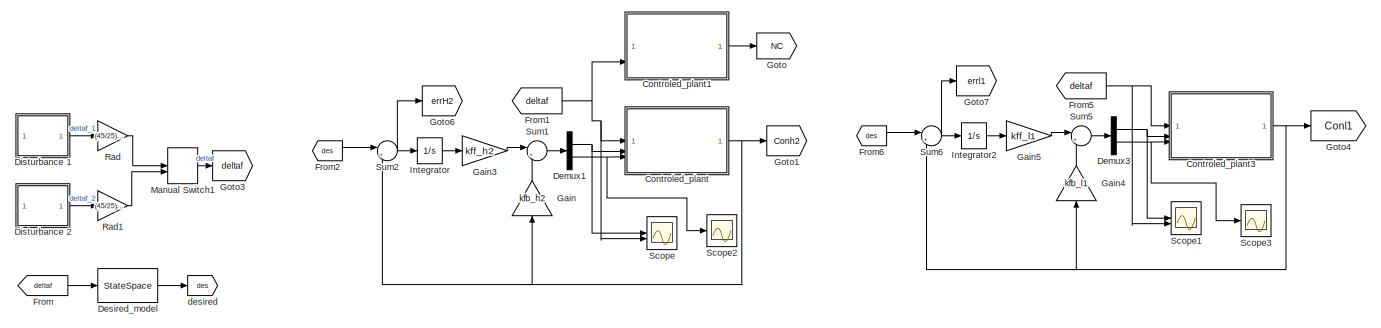
[diagram: root canvas - part 1/2, full width, top band]
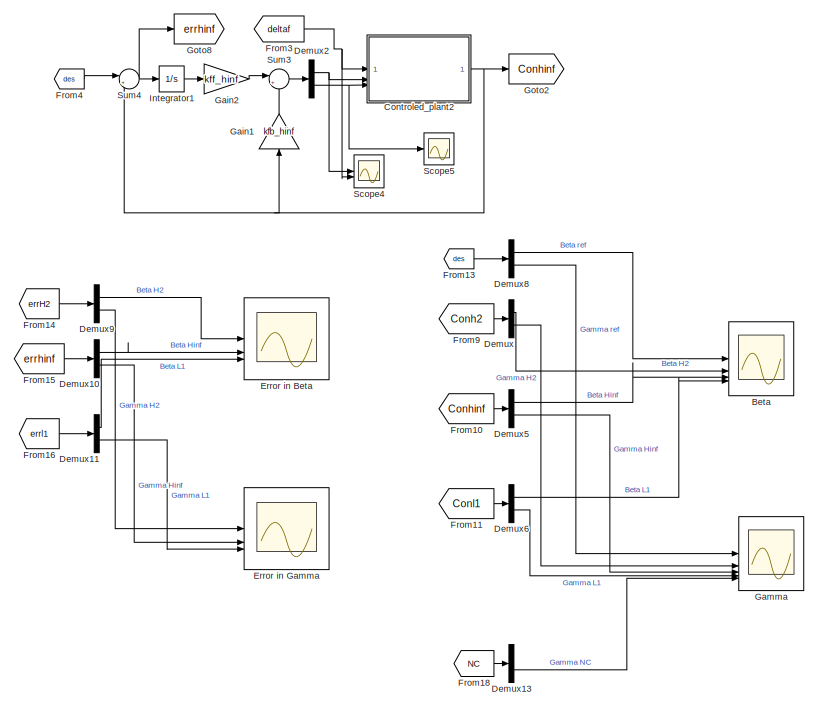
[diagram: root canvas - part 2/2, central region]
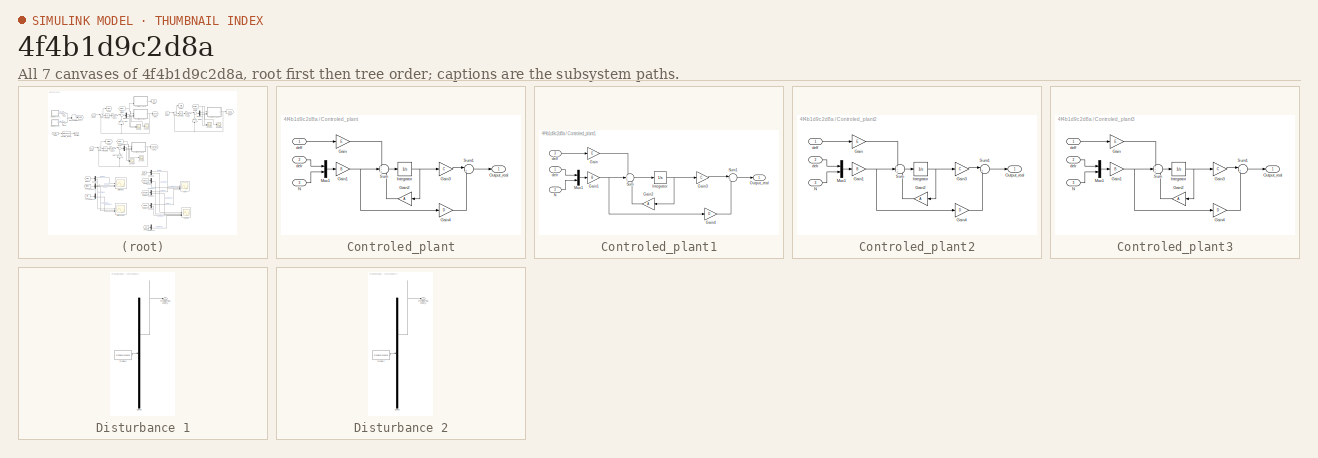
[diagram: thumbnail index - all 7 canvases of the model, root first then tree order]
MODEL slx_4f4b1d9c2d8a
KIND model
CONFIG AbsTol = auto
CONFIG EnableMultiTasking = off
CONFIG FixedStep = auto
CONFIG MaxStep = auto
CONFIG MinStep = auto
CONFIG RelTol = 1e-3
CONFIG SampleTimeConstraint = Unconstrained
CONFIG SolverName = VariableStepAuto
CONFIG StartTime = 0.0
CONFIG StopTime = 3
BLOCK [Scope] Beta
  Floating = off
  NumInputPorts = 5
  ScopeSpecificationString = Simulink.scopes.TimeScopeBlockCfg('CurrentConfiguration', extmgr.ConfigurationSet(extmgr.Configuration('Core','General UI',true,'FigureColor',[1 1 1]),extmgr.Configuration('Core','Source UI',true),extmgr.Configuration('Sources','WiredSimulink',true),extmgr.Configuration('Visuals','Time Domain',true,'SerializedDisplays',{struct('MinYLimReal','-0.00082','MaxYLimReal','0.00082','YLabelReal','','MinYL...<+2328ch>
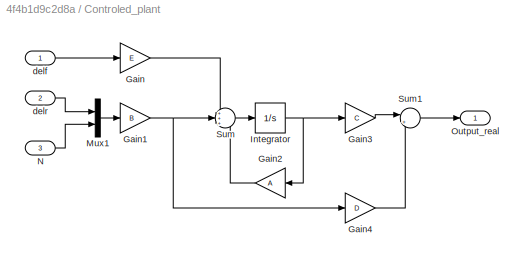
BLOCK [SubSystem] Controled_plant
BLOCK [Gain] Controled_plant/Gain
  Gain = E
  Multiplication = Matrix(K*u)
BLOCK [Gain] Controled_plant/Gain1
  Gain = B
  Multiplication = Matrix(K*u)
BLOCK [Gain] Controled_plant/Gain2
  Gain = A
  Multiplication = Matrix(K*u)
BLOCK [Gain] Controled_plant/Gain3
  Gain = C
  Multiplication = Matrix(K*u)
BLOCK [Gain] Controled_plant/Gain4
  Gain = D
  Multiplication = Matrix(K*u)
BLOCK [Integrator] Controled_plant/Integrator
  InitialCondition = x0
BLOCK [Mux] Controled_plant/Mux1
  DisplayOption = bar
  Inputs = 2
BLOCK [Inport] Controled_plant/N
  Port = 3
BLOCK [Outport] Controled_plant/Output_real
BLOCK [Sum] Controled_plant/Sum
  Inputs = +++
BLOCK [Sum] Controled_plant/Sum1
  Inputs = |++
BLOCK [Inport] Controled_plant/delf
BLOCK [Inport] Controled_plant/delr
  Port = 2
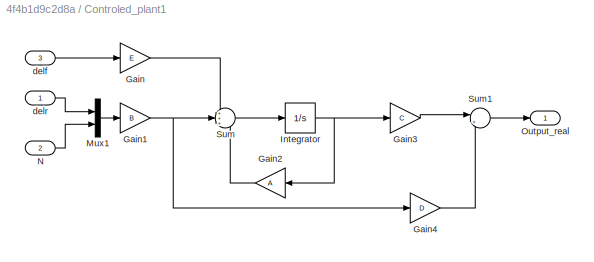
BLOCK [SubSystem] Controled_plant1
BLOCK [Gain] Controled_plant1/Gain
  Gain = E
  Multiplication = Matrix(K*u)
BLOCK [Gain] Controled_plant1/Gain1
  Gain = B
  Multiplication = Matrix(K*u)
BLOCK [Gain] Controled_plant1/Gain2
  Gain = A
  Multiplication = Matrix(K*u)
BLOCK [Gain] Controled_plant1/Gain3
  Gain = C
  Multiplication = Matrix(K*u)
BLOCK [Gain] Controled_plant1/Gain4
  Gain = D
  Multiplication = Matrix(K*u)
BLOCK [Integrator] Controled_plant1/Integrator
  InitialCondition = x0
BLOCK [Mux] Controled_plant1/Mux1
  DisplayOption = bar
  Inputs = 2
BLOCK [Inport] Controled_plant1/N
  Port = 2
BLOCK [Outport] Controled_plant1/Output_real
BLOCK [Sum] Controled_plant1/Sum
  Inputs = +++
BLOCK [Sum] Controled_plant1/Sum1
  Inputs = |++
BLOCK [Inport] Controled_plant1/delf
  Port = 3
BLOCK [Inport] Controled_plant1/delr
BLOCK [SubSystem] Controled_plant2
BLOCK [Gain] Controled_plant2/Gain
  Gain = E
  Multiplication = Matrix(K*u)
BLOCK [Gain] Controled_plant2/Gain1
  Gain = B
  Multiplication = Matrix(K*u)
BLOCK [Gain] Controled_plant2/Gain2
  Gain = A
  Multiplication = Matrix(K*u)
BLOCK [Gain] Controled_plant2/Gain3
  Gain = C
  Multiplication = Matrix(K*u)
BLOCK [Gain] Controled_plant2/Gain4
  Gain = D
  Multiplication = Matrix(K*u)
BLOCK [Integrator] Controled_plant2/Integrator
  InitialCondition = x0
BLOCK [Mux] Controled_plant2/Mux1
  DisplayOption = bar
  Inputs = 2
BLOCK [Inport] Controled_plant2/N
  Port = 3
BLOCK [Outport] Controled_plant2/Output_real
BLOCK [Sum] Controled_plant2/Sum
  Inputs = +++
BLOCK [Sum] Controled_plant2/Sum1
  Inputs = |++
BLOCK [Inport] Controled_plant2/delf
BLOCK [Inport] Controled_plant2/delr
  Port = 2
BLOCK [SubSystem] Controled_plant3
BLOCK [Gain] Controled_plant3/Gain
  Gain = E
  Multiplication = Matrix(K*u)
BLOCK [Gain] Controled_plant3/Gain1
  Gain = B
  Multiplication = Matrix(K*u)
BLOCK [Gain] Controled_plant3/Gain2
  Gain = A
  Multiplication = Matrix(K*u)
BLOCK [Gain] Controled_plant3/Gain3
  Gain = C
  Multiplication = Matrix(K*u)
BLOCK [Gain] Controled_plant3/Gain4
  Gain = D
  Multiplication = Matrix(K*u)
BLOCK [Integrator] Controled_plant3/Integrator
  InitialCondition = x0
BLOCK [Mux] Controled_plant3/Mux1
  DisplayOption = bar
  Inputs = 2
BLOCK [Inport] Controled_plant3/N
  Port = 3
BLOCK [Outport] Controled_plant3/Output_real
BLOCK [Sum] Controled_plant3/Sum
  Inputs = +++
BLOCK [Sum] Controled_plant3/Sum1
  Inputs = |++
BLOCK [Inport] Controled_plant3/delf
BLOCK [Inport] Controled_plant3/delr
  Port = 2
BLOCK [Demux] Demux
  Outputs = 2
BLOCK [Demux] Demux1
  Outputs = 2
BLOCK [Demux] Demux10
  Outputs = 2
BLOCK [Demux] Demux11
  Outputs = 2
BLOCK [Demux] Demux13
  Outputs = 2
BLOCK [Demux] Demux2
  Outputs = 2
BLOCK [Demux] Demux3
  Outputs = 2
BLOCK [Demux] Demux5
  Outputs = 2
BLOCK [Demux] Demux6
  Outputs = 2
BLOCK [Demux] Demux8
  Outputs = 2
BLOCK [Demux] Demux9
  Outputs = 2
BLOCK [StateSpace] Desired_model
  A = Ad
  B = Ed
  C = [1,0;0,1]
  D = zeros(2,1)
  InitialCondition = 0
BLOCK [SubSystem] Disturbance 1
  ClipboardFcn = sigbuilder_block('clipboard');
  CloseFcn = sigbuilder_block('close');
  ContinueFcn = sigbuilder_block('continue');
  CopyFcn = sigbuilder_block('copy');
  DeleteFcn = sigbuilder_block('delete');
  LoadFcn = sigbuilder_block('load');
  MaskHideContents = on
  ModelCloseFcn = sigbuilder_block('modelClose');
  NameChangeFcn = sigbuilder_block('namechange');
  OpenFcn = sigbuilder_block('open',[265.8 141.6 550.8 400.2 ]);
  PauseFcn = sigbuilder_block('pause');
  PreSaveFcn = sigbuilder_block('preSave');
  StartFcn = sigbuilder_block('start');
  StopFcn = sigbuilder_block('stop');
  Tag = STV Subsys
BLOCK [Demux] Disturbance 1/Demux
  DisplayOption = none
  Outputs = 1
  Tag = STV Demux
BLOCK [FromWorkspace] Disturbance 1/FromWs
  Tag = STV FromWs
  VariableName = tuvar
BLOCK [Outport] Disturbance 1/Front steering angel_2
  Tag = STV Outport
BLOCK [SubSystem] Disturbance 2
  ClipboardFcn = sigbuilder_block('clipboard');
  CloseFcn = sigbuilder_block('close');
  ContinueFcn = sigbuilder_block('continue');
  CopyFcn = sigbuilder_block('copy');
  DeleteFcn = sigbuilder_block('delete');
  LoadFcn = sigbuilder_block('load');
  MaskHideContents = on
  ModelCloseFcn = sigbuilder_block('modelClose');
  NameChangeFcn = sigbuilder_block('namechange');
  OpenFcn = sigbuilder_block('open',[265.8 141.6 550.8 400.2 ]);
  PauseFcn = sigbuilder_block('pause');
  PreSaveFcn = sigbuilder_block('preSave');
  StartFcn = sigbuilder_block('start');
  StopFcn = sigbuilder_block('stop');
  Tag = STV Subsys
BLOCK [Demux] Disturbance 2/Demux
  DisplayOption = none
  Outputs = 1
  Tag = STV Demux
BLOCK [FromWorkspace] Disturbance 2/FromWs
  Tag = STV FromWs
  VariableName = tuvar
BLOCK [Outport] Disturbance 2/Front steering angel_2
  Tag = STV Outport
BLOCK [Scope] Error in Beta
  Floating = off
  NumInputPorts = 3
  ScopeSpecificationString = Simulink.scopes.TimeScopeBlockCfg('CurrentConfiguration', extmgr.ConfigurationSet(extmgr.Configuration('Core','General UI',true,'FigureColor',[1 1 1]),extmgr.Configuration('Core','Source UI',true),extmgr.Configuration('Sources','WiredSimulink',true,'DataLoggingVariableName','ScopeData2'),extmgr.Configuration('Visuals','Time Domain',true,'SerializedDisplays',{struct('MinYLimReal','-0.00082','MaxYLi...<+2271ch>
BLOCK [Scope] Error in Gamma
  Floating = off
  NumInputPorts = 3
  ScopeSpecificationString = Simulink.scopes.TimeScopeBlockCfg('CurrentConfiguration', extmgr.ConfigurationSet(extmgr.Configuration('Core','General UI',true,'FigureColor',[1 1 1]),extmgr.Configuration('Core','Source UI',true),extmgr.Configuration('Sources','WiredSimulink',true,'DataLoggingVariableName','ScopeData3'),extmgr.Configuration('Visuals','Time Domain',true,'SerializedDisplays',{struct('MinYLimReal','-0.00028','MaxYLi...<+2140ch>
BLOCK [From] From
  GotoTag = deltaf
BLOCK [From] From1
  GotoTag = deltaf
BLOCK [From] From10
  GotoTag = Conhinf
BLOCK [From] From11
  GotoTag = Conl1
BLOCK [From] From13
  GotoTag = des
BLOCK [From] From14
  GotoTag = errH2
BLOCK [From] From15
  GotoTag = errhinf
BLOCK [From] From16
  GotoTag = errl1
BLOCK [From] From18
  GotoTag = NC
BLOCK [From] From2
  GotoTag = des
BLOCK [From] From3
  GotoTag = deltaf
BLOCK [From] From4
  GotoTag = des
BLOCK [From] From5
  GotoTag = deltaf
BLOCK [From] From6
  GotoTag = des
BLOCK [From] From9
  GotoTag = Conh2
BLOCK [Gain] Gain
  Gain = kfb_h2
  Multiplication = Matrix(K*u)
  NameLocation = right
BLOCK [Gain] Gain1
  Gain = kfb_hinf
  Multiplication = Matrix(K*u)
  NameLocation = right
BLOCK [Gain] Gain2
  Gain = kff_hinf
  Multiplication = Matrix(K*u)
BLOCK [Gain] Gain3
  Gain = kff_h2
  Multiplication = Matrix(K*u)
BLOCK [Gain] Gain4
  Gain = kfb_l1
  Multiplication = Matrix(K*u)
  NameLocation = right
BLOCK [Gain] Gain5
  Gain = kff_l1
  Multiplication = Matrix(K*u)
BLOCK [Scope] Gamma
  Floating = off
  NumInputPorts = 5
  ScopeSpecificationString = Simulink.scopes.TimeScopeBlockCfg('CurrentConfiguration', extmgr.ConfigurationSet(extmgr.Configuration('Core','General UI',true,'FigureColor',[1 1 1]),extmgr.Configuration('Core','Source UI',true),extmgr.Configuration('Sources','WiredSimulink',true,'DataLoggingVariableName','ScopeData1'),extmgr.Configuration('Visuals','Time Domain',true,'SerializedDisplays',{struct('MinYLimReal','-0.03378','MaxYLi...<+2268ch>
BLOCK [Goto] Goto
  GotoTag = NC
BLOCK [Goto] Goto1
  GotoTag = Conh2
BLOCK [Goto] Goto2
  GotoTag = Conhinf
BLOCK [Goto] Goto3
  GotoTag = deltaf
BLOCK [Goto] Goto4
  GotoTag = Conl1
BLOCK [Goto] Goto6
  GotoTag = errH2
BLOCK [Goto] Goto7
  GotoTag = errl1
BLOCK [Goto] Goto8
  GotoTag = errhinf
BLOCK [Integrator] Integrator
BLOCK [Integrator] Integrator1
BLOCK [Integrator] Integrator2
BLOCK [ManualSwitch] Manual Switch1
BLOCK [Gain] Rad
  Gain = (45/25)*(pi/180)
BLOCK [Gain] Rad1
  Gain = (45/25)*(pi/180)
BLOCK [Scope] Scope
  Floating = off
  NumInputPorts = 2
  ScopeSpecificationString = Simulink.scopes.TimeScopeBlockCfg('CurrentConfiguration', extmgr.ConfigurationSet(extmgr.Configuration('Core','General UI',true,'FigureColor',[1 1 1]),extmgr.Configuration('Core','Source UI',true),extmgr.Configuration('Sources','WiredSimulink',true,'DataLoggingVariableName','ScopeData4'),extmgr.Configuration('Visuals','Time Domain',true,'SerializedDisplays',{struct('MinYLimReal','-0.00726','MaxYLi...<+1440ch>
BLOCK [Scope] Scope1
  Floating = off
  NumInputPorts = 2
  ScopeSpecificationString = Simulink.scopes.TimeScopeBlockCfg('CurrentConfiguration', extmgr.ConfigurationSet(extmgr.Configuration('Core','General UI',true,'FigureColor',[1 1 1]),extmgr.Configuration('Core','Source UI',true),extmgr.Configuration('Sources','WiredSimulink',true,'DataLoggingVariableName','ScopeData5'),extmgr.Configuration('Visuals','Time Domain',true,'SerializedDisplays',{struct('MinYLimReal','-0.00428','MaxYLi...<+1414ch>
BLOCK [Scope] Scope2
  Floating = off
  NumInputPorts = 1
  ScopeSpecificationString = Simulink.scopes.TimeScopeBlockCfg('CurrentConfiguration', extmgr.ConfigurationSet(extmgr.Configuration('Core','General UI',true,'FigureColor',[1 1 1]),extmgr.Configuration('Core','Source UI',true),extmgr.Configuration('Sources','WiredSimulink',true,'DataLoggingVariableName','ScopeData6'),extmgr.Configuration('Visuals','Time Domain',true,'SerializedDisplays',{struct('MinYLimReal','-557.95463','MaxY...<+1487ch>
BLOCK [Scope] Scope3
  Floating = off
  NumInputPorts = 1
  ScopeSpecificationString = Simulink.scopes.TimeScopeBlockCfg('CurrentConfiguration', extmgr.ConfigurationSet(extmgr.Configuration('Core','General UI',true,'FigureColor',[1 1 1]),extmgr.Configuration('Core','Source UI',true),extmgr.Configuration('Sources','WiredSimulink',true,'DataLoggingVariableName','ScopeData7'),extmgr.Configuration('Visuals','Time Domain',true,'SerializedDisplays',{struct('MinYLimReal','-361.26621','MaxY...<+1487ch>
BLOCK [Scope] Scope4
  Floating = off
  NumInputPorts = 2
  ScopeSpecificationString = Simulink.scopes.TimeScopeBlockCfg('CurrentConfiguration', extmgr.ConfigurationSet(extmgr.Configuration('Core','General UI',true,'FigureColor',[1 1 1]),extmgr.Configuration('Core','Source UI',true),extmgr.Configuration('Sources','WiredSimulink',true,'DataLoggingVariableName','ScopeData8'),extmgr.Configuration('Visuals','Time Domain',true,'SerializedDisplays',{struct('MinYLimReal','-0.00688','MaxYLi...<+1414ch>
BLOCK [Scope] Scope5
  Floating = off
  NumInputPorts = 1
  ScopeSpecificationString = Simulink.scopes.TimeScopeBlockCfg('CurrentConfiguration', extmgr.ConfigurationSet(extmgr.Configuration('Core','General UI',true,'FigureColor',[1 1 1]),extmgr.Configuration('Core','Source UI',true),extmgr.Configuration('Sources','WiredSimulink',true,'DataLoggingVariableName','ScopeData9'),extmgr.Configuration('Visuals','Time Domain',true,'SerializedDisplays',{struct('MinYLimReal','-471.50639','MaxY...<+1487ch>
BLOCK [Sum] Sum1
  Inputs = |++
BLOCK [Sum] Sum2
  Inputs = |+-
BLOCK [Sum] Sum3
  Inputs = |++
BLOCK [Sum] Sum4
  Inputs = |+-
BLOCK [Sum] Sum5
  Inputs = |++
BLOCK [Sum] Sum6
  Inputs = |+-
BLOCK [Goto] desired
  GotoTag = des
NET Controled_plant/Gain1:1 -> Controled_plant/Gain4:1, Controled_plant/Sum:2
LINE Controled_plant/Gain2:1 -> Controled_plant/Sum:3
LINE Controled_plant/Gain3:1 -> Controled_plant/Sum1:1
LINE Controled_plant/Gain4:1 -> Controled_plant/Sum1:2
LINE Controled_plant/Gain:1 -> Controled_plant/Sum:1
NET Controled_plant/Integrator:1 -> Controled_plant/Gain2:1, Controled_plant/Gain3:1
LINE Controled_plant/Mux1:1 -> Controled_plant/Gain1:1
LINE Controled_plant/N:1 -> Controled_plant/Mux1:2
LINE Controled_plant/Sum1:1 -> Controled_plant/Output_real:1
LINE Controled_plant/Sum:1 -> Controled_plant/Integrator:1
LINE Controled_plant/delf:1 -> Controled_plant/Gain:1
LINE Controled_plant/delr:1 -> Controled_plant/Mux1:1
NET Controled_plant1/Gain1:1 -> Controled_plant1/Gain4:1, Controled_plant1/Sum:2
LINE Controled_plant1/Gain2:1 -> Controled_plant1/Sum:3
LINE Controled_plant1/Gain3:1 -> Controled_plant1/Sum1:1
LINE Controled_plant1/Gain4:1 -> Controled_plant1/Sum1:2
LINE Controled_plant1/Gain:1 -> Controled_plant1/Sum:1
NET Controled_plant1/Integrator:1 -> Controled_plant1/Gain2:1, Controled_plant1/Gain3:1
LINE Controled_plant1/Mux1:1 -> Controled_plant1/Gain1:1
LINE Controled_plant1/N:1 -> Controled_plant1/Mux1:2
LINE Controled_plant1/Sum1:1 -> Controled_plant1/Output_real:1
LINE Controled_plant1/Sum:1 -> Controled_plant1/Integrator:1
LINE Controled_plant1/delf:1 -> Controled_plant1/Gain:1
LINE Controled_plant1/delr:1 -> Controled_plant1/Mux1:1
LINE Controled_plant1:1 -> Goto:1
NET Controled_plant2/Gain1:1 -> Controled_plant2/Gain4:1, Controled_plant2/Sum:2
LINE Controled_plant2/Gain2:1 -> Controled_plant2/Sum:3
LINE Controled_plant2/Gain3:1 -> Controled_plant2/Sum1:1
LINE Controled_plant2/Gain4:1 -> Controled_plant2/Sum1:2
LINE Controled_plant2/Gain:1 -> Controled_plant2/Sum:1
NET Controled_plant2/Integrator:1 -> Controled_plant2/Gain2:1, Controled_plant2/Gain3:1
LINE Controled_plant2/Mux1:1 -> Controled_plant2/Gain1:1
LINE Controled_plant2/N:1 -> Controled_plant2/Mux1:2
LINE Controled_plant2/Sum1:1 -> Controled_plant2/Output_real:1
LINE Controled_plant2/Sum:1 -> Controled_plant2/Integrator:1
LINE Controled_plant2/delf:1 -> Controled_plant2/Gain:1
LINE Controled_plant2/delr:1 -> Controled_plant2/Mux1:1
NET Controled_plant2:1 -> Gain1:1, Goto2:1, Sum4:2
NET Controled_plant3/Gain1:1 -> Controled_plant3/Gain4:1, Controled_plant3/Sum:2
LINE Controled_plant3/Gain2:1 -> Controled_plant3/Sum:3
LINE Controled_plant3/Gain3:1 -> Controled_plant3/Sum1:1
LINE Controled_plant3/Gain4:1 -> Controled_plant3/Sum1:2
LINE Controled_plant3/Gain:1 -> Controled_plant3/Sum:1
NET Controled_plant3/Integrator:1 -> Controled_plant3/Gain2:1, Controled_plant3/Gain3:1
LINE Controled_plant3/Mux1:1 -> Controled_plant3/Gain1:1
LINE Controled_plant3/N:1 -> Controled_plant3/Mux1:2
LINE Controled_plant3/Sum1:1 -> Controled_plant3/Output_real:1
LINE Controled_plant3/Sum:1 -> Controled_plant3/Integrator:1
LINE Controled_plant3/delf:1 -> Controled_plant3/Gain:1
LINE Controled_plant3/delr:1 -> Controled_plant3/Mux1:1
NET Controled_plant3:1 -> Gain4:1, Goto4:1, Sum6:2
NET Controled_plant:1 -> Gain:1, Goto1:1, Sum2:2
LINE Demux10:1 -> Error in Beta:2
LINE Demux10:2 -> Error in Gamma:2
LINE Demux11:1 -> Error in Beta:3
LINE Demux11:2 -> Error in Gamma:3
LINE Demux13:2 -> Gamma:5
NET Demux1:1 -> Controled_plant:2, Scope:1
NET Demux1:2 -> Controled_plant:3, Scope2:1
NET Demux2:1 -> Controled_plant2:2, Scope4:1
NET Demux2:2 -> Controled_plant2:3, Scope5:1
NET Demux3:1 -> Controled_plant3:2, Scope1:1
NET Demux3:2 -> Controled_plant3:3, Scope3:1
LINE Demux5:1 -> Beta:3
LINE Demux5:2 -> Gamma:3
LINE Demux6:1 -> Beta:4
LINE Demux6:2 -> Gamma:4
LINE Demux8:1 -> Beta:1
LINE Demux8:2 -> Gamma:1
LINE Demux9:1 -> Error in Beta:1
LINE Demux9:2 -> Error in Gamma:1
LINE Demux:1 -> Beta:2
LINE Demux:2 -> Gamma:2
LINE Desired_model:1 -> desired:1
LINE Disturbance 1:1 -> Rad:1
LINE Disturbance 2:1 -> Rad1:1
LINE From10:1 -> Demux5:1
LINE From11:1 -> Demux6:1
LINE From13:1 -> Demux8:1
LINE From14:1 -> Demux9:1
LINE From15:1 -> Demux10:1
LINE From16:1 -> Demux11:1
LINE From18:1 -> Demux13:1
NET From1:1 -> Controled_plant1:3, Controled_plant:1, Scope:2
LINE From2:1 -> Sum2:1
NET From3:1 -> Controled_plant2:1, Scope4:2
LINE From4:1 -> Sum4:1
NET From5:1 -> Controled_plant3:1, Scope1:2
LINE From6:1 -> Sum6:1
LINE From9:1 -> Demux:1
LINE From:1 -> Desired_model:1
LINE Gain1:1 -> Sum3:2
LINE Gain2:1 -> Sum3:1
LINE Gain3:1 -> Sum1:1
LINE Gain4:1 -> Sum5:2
LINE Gain5:1 -> Sum5:1
LINE Gain:1 -> Sum1:2
LINE Integrator1:1 -> Gain2:1
LINE Integrator2:1 -> Gain5:1
LINE Integrator:1 -> Gain3:1
LINE Manual Switch1:1 -> Goto3:1
LINE Rad1:1 -> Manual Switch1:2
LINE Rad:1 -> Manual Switch1:1
LINE Sum1:1 -> Demux1:1
NET Sum2:1 -> Goto6:1, Integrator:1
LINE Sum3:1 -> Demux2:1
NET Sum4:1 -> Goto8:1, Integrator1:1
LINE Sum5:1 -> Demux3:1
NET Sum6:1 -> Goto7:1, Integrator2:1
note: NET lines group one-source signal fan-out (src -> all destinations, sorted); 1:1 wires keep LINE
